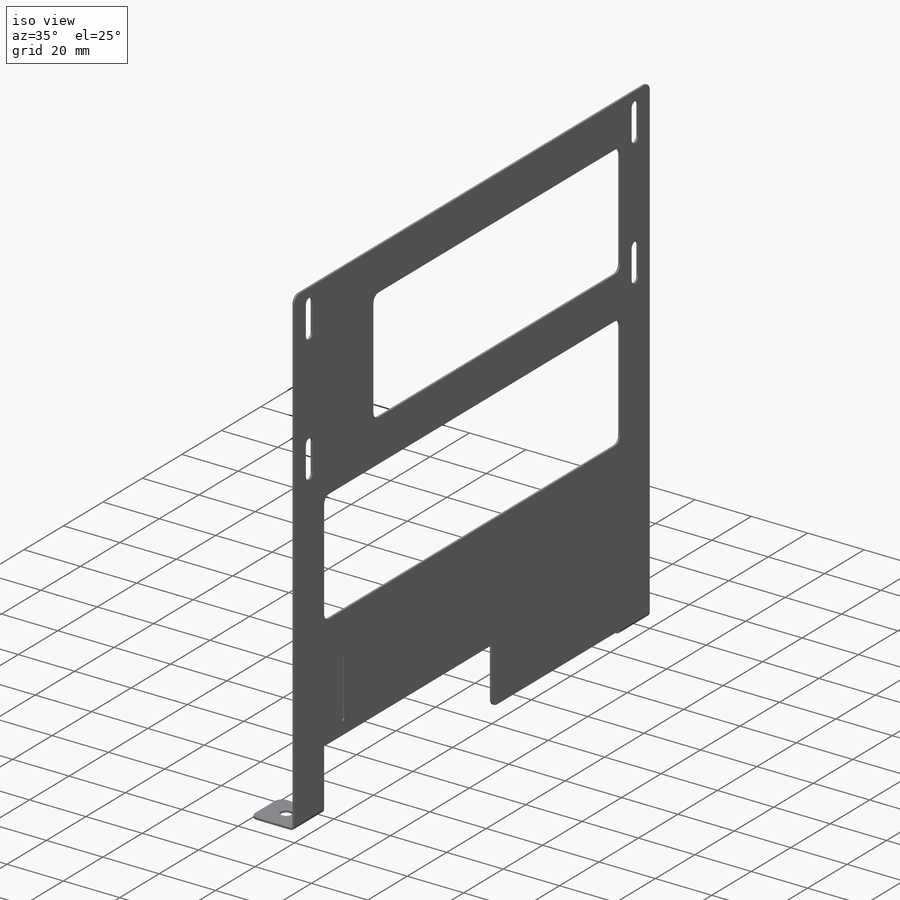
[diagram: iso view]
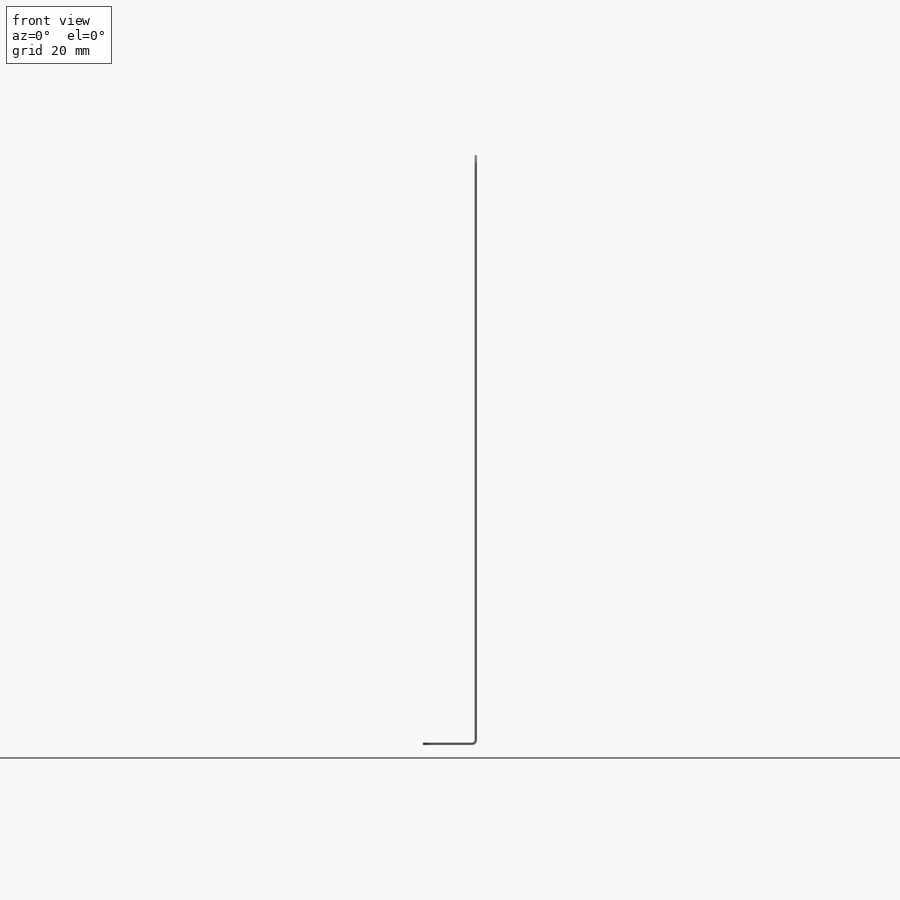
[diagram: front view]
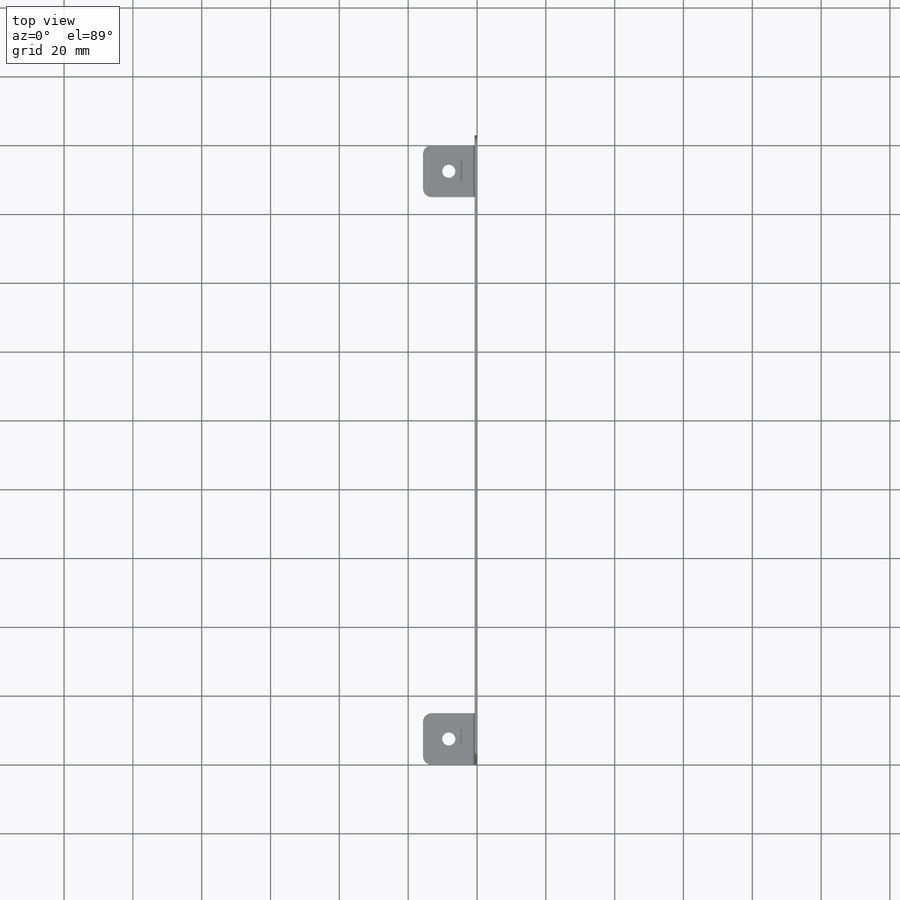
[diagram: top view]
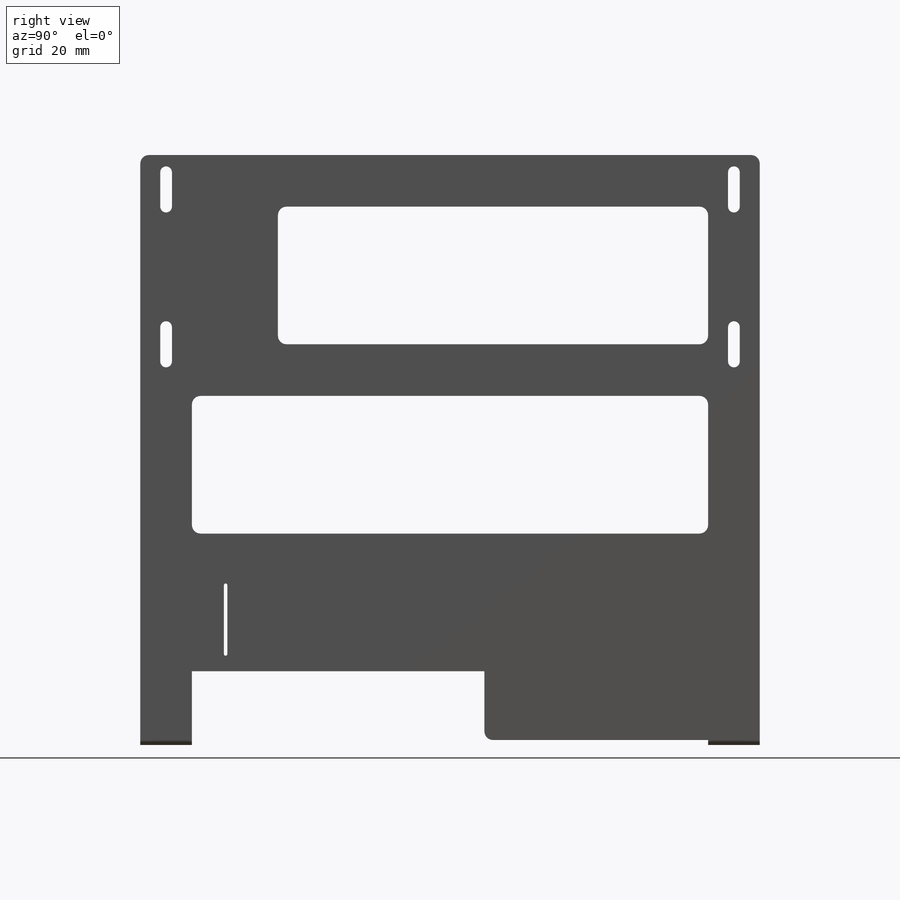
[diagram: right view]
SOLIDWORKS PART (.sldprt)
format: sldprt  version: not decoded by parser v0  size: 449,536 bytes
history: native  units: mm
features: sketch x9, sheet_metal_op x2, cut_extrude x2, fillet x2, material x1, hole x1 + 1 further entry (+11 scaffold rows collapsed; 1 parser-record rows omitted)
feature tree (30):
  scaffold x11  (default folders/planes/origin — collapsed)
  material  "Material <not specified>"
  sketch  "Sketch1"  dims[c1.D1=200.0mm c1.D2=15.0mm c1.D3=15.0mm c1.D4=125.0mm c1.D5=60.0mm c1.D6=170.0mm c2.D1=180.0mm c2.D7=15.0mm c2.D8=40.0mm c2.D9=15.0mm c2.D10=20.0mm c2.D11=10.0mm c2.D12=85.0mm c2.D13=65.0mm c2.D4=125.0mm c3.D13=150.0mm]
  sheet_metal_op  "Sheet-Metal1"
  sheet_metal_op  "Base-Flange1"
  sketch  "Sketch4"  dims[c1.D1=1.0mm c1.D2=5.0mm c1.D3=20.0mm c1.D4=15.2mm c2.D2=15.0mm c2.D4=15.2mm]
  cut_extrude  "Cut-Extrude1"  Depth=10mm
  sketch  "Sketch17"  dims[c1.D1=15.0mm c1.D2=15.0mm c2.D1=0.7366mm c2.D4=90.0deg c2.D5=3.0 c2.D8=0.35mm c2.D9=0.35mm c3.D1=0.7366mm c3.D2=500.0mm c3.D3=0.0mm c3.D6=10.0mm c3.D7=15.0mm]
  sketch  "Sketch10"  dims[c1.D1=15.0mm c1.D2=15.0mm c2.D1=0.7366mm c2.D4=90.0deg c2.D5=2.0 c2.D8=0.35mm c2.D9=0.35mm c3.D1=0.7366mm c3.D2=500.0mm c3.D3=0.0mm c3.D6=10.0mm c3.D7=15.0mm]
  hole  "#6 Clearance Hole1"  Diameter=3.7973mm Depth=10mm
  sketch  "Sketch12"  dims[c1.D1=7.5mm c1.D2=7.5mm c1.D3=7.5mm c1.D4=7.5mm c2.D1=7.5mm c2.D2=7.5mm]
  sketch  "Sketch11"  dims[hole-wizard template sketch: 47 standard entries collapsed; hole parameters kept: c15.Hole Depth=10.0mm c15.D3=~14.816244mm c15.Drill Angle=118.0deg]
  sketch  "Sketch13"  dims[c1.D5=1.7mm c1.D6=1.7mm c1.D9=1.7mm c1.D11=1.7mm c1.D1=5.0mm c1.D2=7.5mm c1.D3=7.5mm c1.D4=5.0mm c2.D6=5.0mm c2.D7=10.0mm c2.D8=10.0mm c2.D10=10.0mm c2.D12=10.0mm c2.D13=45.0mm c2.D14=45.0mm]
  cut_extrude  "Cut-Extrude2"  Depth=10mm
  fillet  "Fillet1"  Radius=2.5mm
  "Flat-Pattern1"
  sketch  "Bend-Lines1"
  sketch  "Bounding-Box1"
  fillet  "Flatten-<EdgeBend3>1"  [1 undecoded]
  parser-record x1  (decoder bookkeeping rows leaked as tree rows — omitted from the tree; the rows remain in map.json)
decode coverage: 11 of 16 modeling features carry decoded parameters; 1 rows unclassified (native names shown)
note: ~ marks probable driven/reference dimensions
note: 1 parameter value undecoded
note: suppression state not decoded; provenance and decode notes live in map.json
